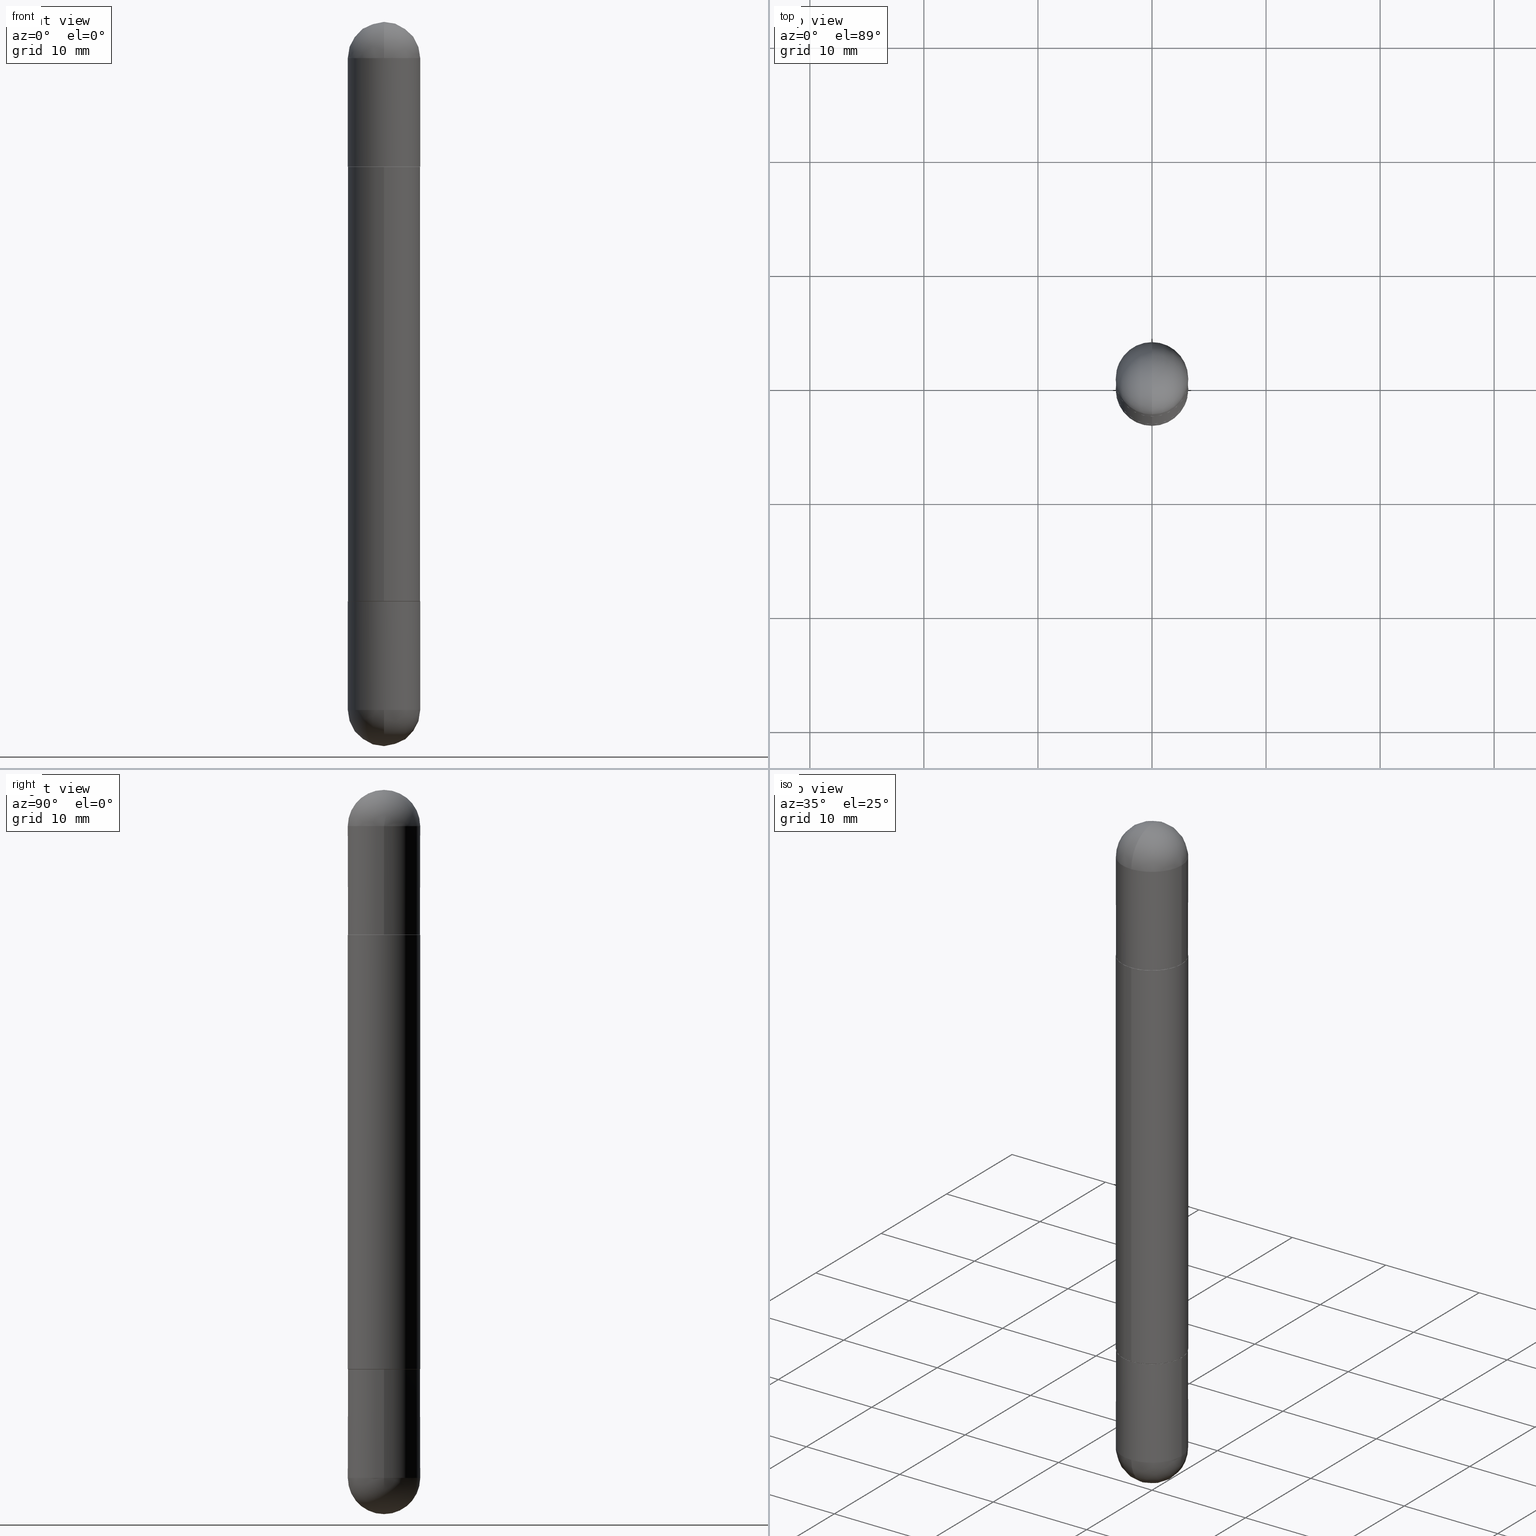
[diagram: canonical four-view strip — front | top / right | iso, engineering-drawing reading convention]
A machine part, canonical four-view strip (front | top / right | iso — engineering-drawing reading convention). The complete STEP part file that produces these views, byte-faithful:
ISO-10303-21;
HEADER;
FILE_DESCRIPTION (( 'STEP AP203' ),
    '1' );
FILE_NAME ('31351.STEP',
    '2024-03-01T12:41:28',
    ( '' ),
    ( '' ),
    'SwSTEP 2.0',
    'SolidWorks 2023',
    '' );
FILE_SCHEMA (( 'CONFIG_CONTROL_DESIGN' ));
ENDSEC;

DATA;
#1 = CONICAL_SURFACE ( 'NONE', #96, 0.1239999999999999991, 0.7853981633975507526 ) ;
#2 = EDGE_LOOP ( 'NONE', ( #809, #770, #580, #193, #389 ) ) ;
#3 =( NAMED_UNIT ( * ) SI_UNIT ( $, .STERADIAN. ) SOLID_ANGLE_UNIT ( ) );
#4 = CIRCLE ( 'NONE', #483, 0.1250000000000001943 ) ;
#5 = VERTEX_POINT ( 'NONE', #460 ) ;
#6 = APPLICATION_PROTOCOL_DEFINITION ( 'international standard', 'config_control_design', 1994, #145 ) ;
#7 = EDGE_CURVE ( 'NONE', #13, #372, #63, .T. ) ;
#8 = VERTEX_POINT ( 'NONE', #536 ) ;
#9 = CIRCLE ( 'NONE', #249, 0.1250000000000000000 ) ;
#10 = DIRECTION ( 'NONE',  ( 4.851104656541460468E-15, 0.7071067811866224018, -0.7071067811864726327 ) ) ;
#11 = AXIS2_PLACEMENT_3D ( 'NONE', #44, #104, #485 ) ;
#12 = LINE ( 'NONE', #264, #431 ) ;
#13 = VERTEX_POINT ( 'NONE', #780 ) ;
#14 = LINE ( 'NONE', #269, #565 ) ;
#15 = VECTOR ( 'NONE', #366, 39.37007874015748143 ) ;
#16 = CARTESIAN_POINT ( 'NONE',  ( 0.1250000000000000000, -8.728703347107833388E-16, -2.500000000000000444 ) ) ;
#17 = EDGE_LOOP ( 'NONE', ( #119, #187 ) ) ;
#18 = EDGE_CURVE ( 'NONE', #245, #531, #41, .T. ) ;
#19 = CARTESIAN_POINT ( 'NONE',  ( 4.888230624226823616E-29, -6.979845706923164784E-15, -0.5010000000000010001 ) ) ;
#20 = FACE_OUTER_BOUND ( 'NONE', #658, .T. ) ;
#21 = VERTEX_POINT ( 'NONE', #617 ) ;
#22 = CARTESIAN_POINT ( 'NONE',  ( 5.476868636775814291E-29, -8.766450547892521992E-15, -0.1250000000000004441 ) ) ;
#23 = CARTESIAN_POINT ( 'NONE',  ( -8.658873720330480207E-16, -0.1240000000000069796, -1.999999999999999112 ) ) ;
#24 = DIRECTION ( 'NONE',  ( 1.000000000000000000, -6.982962677686270655E-15, 0.000000000000000000 ) ) ;
#25 = DIRECTION ( 'NONE',  ( -2.445468806185136597E-29, 3.491481338843145583E-15, 1.000000000000000000 ) ) ;
#26 = CIRCLE ( 'NONE', #161, 0.1239999999999999991 ) ;
#27 = DIRECTION ( 'NONE',  ( -2.445337981103964041E-29, 3.491668687805485632E-15, -1.000000000000000000 ) ) ;
#28 = AXIS2_PLACEMENT_3D ( 'NONE', #109, #491, #732 ) ;
#29 = CIRCLE ( 'NONE', #500, 0.1250000000000001388 ) ;
#30 = CARTESIAN_POINT ( 'NONE',  ( 4.888230624226823616E-29, -6.979845706923164784E-15, -1.998999999999999666 ) ) ;
#31 = CARTESIAN_POINT ( 'NONE',  ( -0.1250000000000000000, -6.780053178997939591E-15, -0.5000000000000006661 ) ) ;
#32 = CARTESIAN_POINT ( 'NONE',  ( 5.787897026856327965E-29, -9.195231672753244292E-15, -2.561107494060246644E-16 ) ) ;
#33 = DIRECTION ( 'NONE',  ( 1.000000000000000000, -6.982962677686265922E-15, -4.883557194083112901E-29 ) ) ;
#34 = ADVANCED_FACE ( 'NONE', ( #295 ), #103, .F. ) ;
#35 = EDGE_CURVE ( 'NONE', #113, #572, #329, .T. ) ;
#36 = CARTESIAN_POINT ( 'NONE',  ( 0.000000000000000000, 0.000000000000000000, -2.500000000000000444 ) ) ;
#37 = ADVANCED_FACE ( 'NONE', ( #407 ), #547, .T. ) ;
#38 = CARTESIAN_POINT ( 'NONE',  ( 5.807988414689700538E-29, -8.292268179752471696E-15, -0.1250000000000004441 ) ) ;
#39 = CARTESIAN_POINT ( 'NONE',  ( 0.000000000000000000, 0.000000000000000000, -2.500000000000000444 ) ) ;
#40 = APPROVAL ( #443, 'UNSPECIFIED' ) ;
#41 = CIRCLE ( 'NONE', #392, 0.1250000000000000000 ) ;
#42 = DIRECTION ( 'NONE',  ( 6.982962677686265922E-15, 1.000000000000000000, 3.551402391763536859E-15 ) ) ;
#43 = CARTESIAN_POINT ( 'NONE',  ( 4.888230624226823616E-29, -6.979845706923164784E-15, -0.5010000000000010001 ) ) ;
#44 = CARTESIAN_POINT ( 'NONE',  ( 5.476868636775814291E-29, -8.766450547892521992E-15, -2.375000000000000000 ) ) ;
#45 = DIRECTION ( 'NONE',  ( -1.000000000000000000, 6.982962677686265922E-15, 4.883557194083112340E-29 ) ) ;
#46 = FACE_OUTER_BOUND ( 'NONE', #67, .T. ) ;
#47 = AXIS2_PLACEMENT_3D ( 'NONE', #739, #550, #429 ) ;
#48 = DIRECTION ( 'NONE',  ( 1.000000000000000000, -6.860497997771530774E-15, -4.840798879624142912E-29 ) ) ;
#49 = CC_DESIGN_PERSON_AND_ORGANIZATION_ASSIGNMENT ( #752, #817, ( #759 ) ) ;
#50 = CARTESIAN_POINT ( 'NONE',  ( -0.1250000000000000000, -6.749437009019256592E-15, -2.375000000000000000 ) ) ;
#51 = LINE ( 'NONE', #803, #101 ) ;
#52 = ORIENTED_EDGE ( 'NONE', *, *, #637, .T. ) ;
#53 = DIRECTION ( 'NONE',  ( -2.445337981103964041E-29, 3.491668687805485632E-15, 1.000000000000000000 ) ) ;
#54 = LINE ( 'NONE', #558, #136 ) ;
#55 = ORIENTED_EDGE ( 'NONE', *, *, #447, .T. ) ;
#56 = APPROVAL_DATE_TIME ( #629, #515 ) ;
#57 = EDGE_CURVE ( 'NONE', #21, #751, #573, .T. ) ;
#58 = VERTEX_POINT ( 'NONE', #92 ) ;
#59 = AXIS2_PLACEMENT_3D ( 'NONE', #94, #348, #610 ) ;
#60 = PERSON_AND_ORGANIZATION_ROLE ( 'design_supplier' ) ;
#61 = ORIENTED_EDGE ( 'NONE', *, *, #584, .T. ) ;
#62 = PERSON_AND_ORGANIZATION_ROLE ( 'classification_officer' ) ;
#63 = CIRCLE ( 'NONE', #357, 0.1250000000000000000 ) ;
#64 = ORIENTED_EDGE ( 'NONE', *, *, #528, .T. ) ;
#65 = APPROVAL_ROLE ( '' ) ;
#66 = CIRCLE ( 'NONE', #428, 0.1250000000000000000 ) ;
#67 = EDGE_LOOP ( 'NONE', ( #757, #442, #121, #64 ) ) ;
#68 = PERSON_AND_ORGANIZATION ( #621, #765 ) ;
#69 = EDGE_CURVE ( 'NONE', #271, #563, #530, .T. ) ;
#70 = CIRCLE ( 'NONE', #666, 0.1250000000000001943 ) ;
#71 = EDGE_CURVE ( 'NONE', #591, #645, #437, .T. ) ;
#72 = ORIENTED_EDGE ( 'NONE', *, *, #753, .T. ) ;
#73 = AXIS2_PLACEMENT_3D ( 'NONE', #681, #620, #237 ) ;
#74 = DIRECTION ( 'NONE',  ( -6.982962677686265922E-15, -1.000000000000000000, -4.370956789862816416E-15 ) ) ;
#75 = ORIENTED_EDGE ( 'NONE', *, *, #495, .F. ) ;
#76 = AXIS2_PLACEMENT_3D ( 'NONE', #289, #418, #172 ) ;
#77 = DIRECTION ( 'NONE',  ( -6.982962677686265922E-15, -1.000000000000000000, -3.304654831045479808E-15 ) ) ;
#78 = CIRCLE ( 'NONE', #493, 0.1250000000000000000 ) ;
#79 = CARTESIAN_POINT ( 'NONE',  ( 8.728703347108321496E-16, 0.1249999999999930195, -0.5000000000000001110 ) ) ;
#80 = ADVANCED_FACE ( 'NONE', ( #158 ), #410, .T. ) ;
#81 = ORIENTED_EDGE ( 'NONE', *, *, #715, .F. ) ;
#82 = CARTESIAN_POINT ( 'NONE',  ( 3.056672476379955962E-29, -4.364585859756858224E-15, -1.250000000000000222 ) ) ;
#83 = DIRECTION ( 'NONE',  ( -2.445468806185136877E-29, 3.491481338843145188E-15, -1.000000000000000000 ) ) ;
#84 = ORIENTED_EDGE ( 'NONE', *, *, #338, .T. ) ;
#85 = EDGE_CURVE ( 'NONE', #372, #13, #291, .T. ) ;
#86 = DIRECTION ( 'NONE',  ( -2.445337981103964041E-29, 3.491668687805485632E-15, -1.000000000000000000 ) ) ;
#87 = LINE ( 'NONE', #16, #682 ) ;
#88 = APPLICATION_CONTEXT ( 'configuration controlled 3d designs of mechanical parts and assemblies' ) ;
#89 = CARTESIAN_POINT ( 'NONE',  ( 4.890937612370273194E-29, -6.982962677686291165E-15, -2.000000000000000000 ) ) ;
#90 = CARTESIAN_POINT ( 'NONE',  ( 4.890675962207927522E-29, -6.983337375610970476E-15, -0.5000000000000009992 ) ) ;
#91 = FACE_OUTER_BOUND ( 'NONE', #747, .T. ) ;
#92 = CARTESIAN_POINT ( 'NONE',  ( -8.575622497213856334E-16, -0.1250000000000086320, -0.1250000000000008882 ) ) ;
#93 = EDGE_CURVE ( 'NONE', #182, #374, #205, .T. ) ;
#94 = CARTESIAN_POINT ( 'NONE',  ( 5.476868636775814291E-29, -8.766450547892521992E-15, -2.375000000000000000 ) ) ;
#95 = ADVANCED_FACE ( 'NONE', ( #427 ), #303, .F. ) ;
#96 = AXIS2_PLACEMENT_3D ( 'NONE', #222, #795, #672 ) ;
#97 = DIRECTION ( 'NONE',  ( -6.982962677686265922E-15, -1.000000000000000000, -4.370956789862816416E-15 ) ) ;
#98 = DIRECTION ( 'NONE',  ( 1.000000000000000000, -6.982962677686265922E-15, -4.883557194083112901E-29 ) ) ;
#99 = DIRECTION ( 'NONE',  ( -2.445468806185136597E-29, 3.491481338843145583E-15, -1.000000000000000000 ) ) ;
#100 = DIRECTION ( 'NONE',  ( -6.982962677686265922E-15, -1.000000000000000000, -3.304654831045479808E-15 ) ) ;
#101 = VECTOR ( 'NONE', #231, 39.37007874015748143 ) ;
#102 = CIRCLE ( 'NONE', #657, 0.1250000000000000000 ) ;
#103 = PLANE ( 'NONE',  #509 ) ;
#104 = DIRECTION ( 'NONE',  ( 1.000000000000000000, -6.982962677686265922E-15, 4.883557194083112340E-29 ) ) ;
#105 = AXIS2_PLACEMENT_3D ( 'NONE', #474, #726, #789 ) ;
#106 = PLANE ( 'NONE',  #150 ) ;
#107 = EDGE_CURVE ( 'NONE', #8, #58, #615, .T. ) ;
#108 = DIRECTION ( 'NONE',  ( 1.000000000000000000, -6.982962677686270655E-15, 0.000000000000000000 ) ) ;
#109 = CARTESIAN_POINT ( 'NONE',  ( 0.000000000000000000, 0.000000000000000000, -2.500000000000000444 ) ) ;
#110 = FACE_OUTER_BOUND ( 'NONE', #575, .T. ) ;
#111 = VECTOR ( 'NONE', #152, 39.37007874015748143 ) ;
#112 = AXIS2_PLACEMENT_3D ( 'NONE', #421, #562, #173 ) ;
#113 = VERTEX_POINT ( 'NONE', #178 ) ;
#114 = DIRECTION ( 'NONE',  ( 2.445337981103964041E-29, -3.491668687805485632E-15, 1.000000000000000000 ) ) ;
#115 = CYLINDRICAL_SURFACE ( 'NONE', #376, 0.1250000000000000000 ) ;
#116 = CONICAL_SURFACE ( 'NONE', #570, 0.1239999999999999991, 0.7853981633975507526 ) ;
#117 = DIRECTION ( 'NONE',  ( 1.000000000000000000, -6.982962677686270655E-15, 0.000000000000000000 ) ) ;
#118 = APPROVAL_DATE_TIME ( #381, #40 ) ;
#119 = ORIENTED_EDGE ( 'NONE', *, *, #438, .T. ) ;
#120 = PERSON_AND_ORGANIZATION ( #621, #765 ) ;
#121 = ORIENTED_EDGE ( 'NONE', *, *, #131, .T. ) ;
#122 = MANIFOLD_SOLID_BREP ( 'Mirror4[4]', #772 ) ;
#123 = ORIENTED_EDGE ( 'NONE', *, *, #365, .T. ) ;
#124 = ORIENTED_EDGE ( 'NONE', *, *, #741, .F. ) ;
#125 = VECTOR ( 'NONE', #169, 39.37007874015748143 ) ;
#126 = PERSON_AND_ORGANIZATION ( #621, #765 ) ;
#127 = ORIENTED_EDGE ( 'NONE', *, *, #616, .T. ) ;
#128 = ORIENTED_EDGE ( 'NONE', *, *, #761, .F. ) ;
#129 = COORDINATED_UNIVERSAL_TIME_OFFSET ( 5, 0, .BEHIND. ) ;
#130 = MANIFOLD_SOLID_BREP ( 'Combine1', #689 ) ;
#131 = EDGE_CURVE ( 'NONE', #58, #194, #724, .T. ) ;
#132 = ORIENTED_EDGE ( 'NONE', *, *, #464, .T. ) ;
#133 = APPROVAL_DATE_TIME ( #503, #553 ) ;
#134 = CIRCLE ( 'NONE', #175, 0.1239999999999999991 ) ;
#135 = ORIENTED_EDGE ( 'NONE', *, *, #616, .F. ) ;
#136 = VECTOR ( 'NONE', #235, 39.37007874015748143 ) ;
#137 = EDGE_LOOP ( 'NONE', ( #378, #84, #432, #238, #420 ) ) ;
#138 = DIRECTION ( 'NONE',  ( -2.445337981103964041E-29, 3.491668687805485632E-15, -1.000000000000000000 ) ) ;
#139 = EDGE_CURVE ( 'NONE', #5, #628, #9, .T. ) ;
#140 = DIRECTION ( 'NONE',  ( -4.937700262165053702E-15, -0.7071067811866175168, 0.7071067811864775177 ) ) ;
#141 = ORIENTED_EDGE ( 'NONE', *, *, #603, .T. ) ;
#142 = AXIS2_PLACEMENT_3D ( 'NONE', #622, #53, #800 ) ;
#143 = CARTESIAN_POINT ( 'NONE',  ( 5.807988414689700538E-29, -8.292268179752471696E-15, -2.375000000000000000 ) ) ;
#144 = CARTESIAN_POINT ( 'NONE',  ( 5.476868636775814291E-29, -8.766450547892521992E-15, -2.375000000000000000 ) ) ;
#145 = APPLICATION_CONTEXT ( 'configuration controlled 3d designs of mechanical parts and assemblies' ) ;
#146 = ORIENTED_EDGE ( 'NONE', *, *, #630, .T. ) ;
#147 = CARTESIAN_POINT ( 'NONE',  ( 5.807988414689700538E-29, -8.292268179752471696E-15, -0.1250000000000004441 ) ) ;
#148 = CARTESIAN_POINT ( 'NONE',  ( 0.000000000000000000, 0.000000000000000000, -2.500000000000000444 ) ) ;
#149 = EDGE_LOOP ( 'NONE', ( #683, #518, #341, #72, #190 ) ) ;
#150 = AXIS2_PLACEMENT_3D ( 'NONE', #359, #293, #362 ) ;
#151 = DIRECTION ( 'NONE',  ( 2.445468806185136597E-29, -3.491481338843145583E-15, 1.000000000000000000 ) ) ;
#152 = DIRECTION ( 'NONE',  ( 5.024295867788576727E-15, 0.7071067811866224018, 0.7071067811864726327 ) ) ;
#153 = EDGE_CURVE ( 'NONE', #374, #182, #587, .T. ) ;
#154 = DIRECTION ( 'NONE',  ( -6.982962677686265922E-15, -1.000000000000000000, -3.278217592397108762E-15 ) ) ;
#155 = EDGE_CURVE ( 'NONE', #572, #563, #561, .T. ) ;
#156 = DIRECTION ( 'NONE',  ( -2.445468806185136597E-29, 3.491481338843145583E-15, -1.000000000000000000 ) ) ;
#157 = DIRECTION ( 'NONE',  ( -1.000000000000000000, 6.982962677686265922E-15, 4.883557194083112340E-29 ) ) ;
#158 = FACE_OUTER_BOUND ( 'NONE', #313, .T. ) ;
#159 = DIRECTION ( 'NONE',  ( 2.445468806185136597E-29, -3.491481338843145583E-15, 1.000000000000000000 ) ) ;
#160 = DIRECTION ( 'NONE',  ( -6.982962677686265922E-15, -1.000000000000000000, -3.304654831045479808E-15 ) ) ;
#161 = AXIS2_PLACEMENT_3D ( 'NONE', #766, #778, #207 ) ;
#162 = DIRECTION ( 'NONE',  ( -1.000000000000000000, 0.000000000000000000, 0.000000000000000000 ) ) ;
#163 = DIRECTION ( 'NONE',  ( 2.445468806185136597E-29, -3.491481338843145583E-15, 1.000000000000000000 ) ) ;
#164 = CARTESIAN_POINT ( 'NONE',  ( 8.728703347108321496E-16, 0.1249999999999930195, -0.5000000000000001110 ) ) ;
#165 = DIRECTION ( 'NONE',  ( -6.982962677686265133E-15, -1.000000000000000000, 0.000000000000000000 ) ) ;
#166 = CARTESIAN_POINT ( 'NONE',  ( 8.541320007226054361E-16, 0.1239999999999930186, -0.5000000000000005551 ) ) ;
#167 = PRODUCT_DEFINITION ( 'UNKNOWN', '', #322, #481 ) ;
#168 = CARTESIAN_POINT ( 'NONE',  ( 5.807988414689700538E-29, -8.292268179752471696E-15, -0.1250000000000004441 ) ) ;
#169 = DIRECTION ( 'NONE',  ( -2.445468806185136877E-29, 3.491481338843145188E-15, -1.000000000000000000 ) ) ;
#170 = CARTESIAN_POINT ( 'NONE',  ( 8.541320007226054361E-16, 0.1239999999999930186, -0.5000000000000005551 ) ) ;
#171 = CIRCLE ( 'NONE', #590, 0.1250000000000000000 ) ;
#172 = DIRECTION ( 'NONE',  ( 1.000000000000000000, -6.982962677686270655E-15, 0.000000000000000000 ) ) ;
#173 = DIRECTION ( 'NONE',  ( -6.982962677686265922E-15, -1.000000000000000000, -3.491668687805485632E-15 ) ) ;
#174 = ORIENTED_EDGE ( 'NONE', *, *, #57, .F. ) ;
#175 = AXIS2_PLACEMENT_3D ( 'NONE', #273, #340, #720 ) ;
#176 = AXIS2_PLACEMENT_3D ( 'NONE', #680, #358, #160 ) ;
#177 = AXIS2_PLACEMENT_3D ( 'NONE', #461, #263, #77 ) ;
#178 = CARTESIAN_POINT ( 'NONE',  ( -8.728703347107364016E-16, -0.1250000000000072720, -0.5010000000000014442 ) ) ;
#179 = DIRECTION ( 'NONE',  ( 2.445468806185136597E-29, -3.491481338843145583E-15, 1.000000000000000000 ) ) ;
#180 = ORIENTED_EDGE ( 'NONE', *, *, #213, .T. ) ;
#181 = EDGE_CURVE ( 'NONE', #814, #700, #185, .T. ) ;
#182 = VERTEX_POINT ( 'NONE', #738 ) ;
#183 =( CONVERSION_BASED_UNIT ( 'INCH', #811 ) LENGTH_UNIT ( ) NAMED_UNIT ( #785 ) );
#184 = EDGE_CURVE ( 'NONE', #233, #754, #371, .T. ) ;
#185 = CIRCLE ( 'NONE', #790, 0.1250000000000001943 ) ;
#186 = CLOSED_SHELL ( 'NONE', ( #457, #267, #288, #673, #728, #631 ) ) ;
#187 = ORIENTED_EDGE ( 'NONE', *, *, #741, .T. ) ;
#188 = ORIENTED_EDGE ( 'NONE', *, *, #446, .F. ) ;
#189 = DATE_TIME_ROLE ( 'creation_date' ) ;
#190 = ORIENTED_EDGE ( 'NONE', *, *, #232, .T. ) ;
#191 = PERSON_AND_ORGANIZATION ( #621, #765 ) ;
#192 = EDGE_CURVE ( 'NONE', #559, #700, #78, .T. ) ;
#193 = ORIENTED_EDGE ( 'NONE', *, *, #417, .F. ) ;
#194 = VERTEX_POINT ( 'NONE', #552 ) ;
#195 = CIRCLE ( 'NONE', #411, 0.1250000000000000000 ) ;
#196 = ORIENTED_EDGE ( 'NONE', *, *, #435, .F. ) ;
#197 = AXIS2_PLACEMENT_3D ( 'NONE', #655, #86, #339 ) ;
#198 = CYLINDRICAL_SURFACE ( 'NONE', #244, 0.1250000000000000000 ) ;
#199 = LINE ( 'NONE', #776, #279 ) ;
#200 = ORIENTED_EDGE ( 'NONE', *, *, #413, .T. ) ;
#201 = DIRECTION ( 'NONE',  ( -0.000000000000000000, -0.000000000000000000, -1.000000000000000000 ) ) ;
#202 = ADVANCED_FACE ( 'NONE', ( #360 ), #223, .T. ) ;
#203 = DIRECTION ( 'NONE',  ( -6.982962677686265133E-15, -1.000000000000000000, 0.000000000000000000 ) ) ;
#204 = VERTEX_POINT ( 'NONE', #731 ) ;
#205 = CIRCLE ( 'NONE', #142, 0.1239999999999999991 ) ;
#206 = DIRECTION ( 'NONE',  ( -1.000000000000000000, 0.000000000000000000, 0.000000000000000000 ) ) ;
#207 = DIRECTION ( 'NONE',  ( -6.982962677686265922E-15, -1.000000000000000000, -3.304654831045479808E-15 ) ) ;
#208 = EDGE_LOOP ( 'NONE', ( #402, #818, #568, #439 ) ) ;
#209 = VECTOR ( 'NONE', #27, 39.37007874015748143 ) ;
#210 = DIRECTION ( 'NONE',  ( 1.000000000000000000, -6.982962677686270655E-15, 0.000000000000000000 ) ) ;
#211 = CIRCLE ( 'NONE', #281, 0.1250000000000001388 ) ;
#212 = CARTESIAN_POINT ( 'NONE',  ( 8.575622497214423328E-16, 0.1250000000000001388, -2.500000000000000000 ) ) ;
#213 = EDGE_CURVE ( 'NONE', #572, #113, #294, .T. ) ;
#214 = CARTESIAN_POINT ( 'NONE',  ( 4.890937612370273194E-29, -6.982962677686291165E-15, -0.5000000000000006661 ) ) ;
#215 = CARTESIAN_POINT ( 'NONE',  ( -0.1250000000000000000, -6.780053178997941168E-15, -0.1250000000000004441 ) ) ;
#216 = FACE_OUTER_BOUND ( 'NONE', #254, .T. ) ;
#217 = APPROVAL_PERSON_ORGANIZATION ( #191, #40, #696 ) ;
#218 = CARTESIAN_POINT ( 'NONE',  ( 4.890675962207928082E-29, -6.983337375610971265E-15, -2.000000000000000000 ) ) ;
#219 = FACE_OUTER_BOUND ( 'NONE', #252, .T. ) ;
#220 = AXIS2_PLACEMENT_3D ( 'NONE', #423, #618, #675 ) ;
#221 = CARTESIAN_POINT ( 'NONE',  ( 0.1250000000000000000, -8.510485763430165164E-15, -2.375000000000000000 ) ) ;
#222 = CARTESIAN_POINT ( 'NONE',  ( 4.890675962207927522E-29, -6.983337375610970476E-15, -0.5000000000000009992 ) ) ;
#223 = CONICAL_SURFACE ( 'NONE', #549, 0.1239999999999999991, 0.7853981633975507526 ) ;
#224 = DIRECTION ( 'NONE',  ( -6.982962677686265922E-15, -1.000000000000000000, 4.370956789862811683E-15 ) ) ;
#225 = CARTESIAN_POINT ( 'NONE',  ( 4.888230624226823616E-29, -6.979845706923164784E-15, -0.5010000000000010001 ) ) ;
#226 = EDGE_CURVE ( 'NONE', #645, #559, #171, .T. ) ;
#227 = CARTESIAN_POINT ( 'NONE',  ( 0.000000000000000000, 0.000000000000000000, -2.500000000000000444 ) ) ;
#228 = CARTESIAN_POINT ( 'NONE',  ( -0.1250000000000000000, 8.575622497214414453E-16, -2.500000000000000444 ) ) ;
#229 = CARTESIAN_POINT ( 'NONE',  ( 4.890675962207927522E-29, -6.983337375610970476E-15, -1.999999999999999778 ) ) ;
#230 = DIRECTION ( 'NONE',  ( 6.860497997771529196E-15, 1.000000000000000000, 0.000000000000000000 ) ) ;
#231 = DIRECTION ( 'NONE',  ( -2.445468806185136877E-29, 3.491481338843145188E-15, 1.000000000000000000 ) ) ;
#232 = EDGE_CURVE ( 'NONE', #531, #245, #102, .T. ) ;
#233 = VERTEX_POINT ( 'NONE', #743 ) ;
#234 = DIRECTION ( 'NONE',  ( 2.445468806185136597E-29, -3.491481338843145583E-15, 1.000000000000000000 ) ) ;
#235 = DIRECTION ( 'NONE',  ( 4.851104656541460468E-15, 0.7071067811866224018, -0.7071067811864726327 ) ) ;
#236 = EDGE_LOOP ( 'NONE', ( #748, #247 ) ) ;
#237 = DIRECTION ( 'NONE',  ( -6.982962677686265922E-15, -1.000000000000000000, 4.370956789862811683E-15 ) ) ;
#238 = ORIENTED_EDGE ( 'NONE', *, *, #753, .F. ) ;
#239 = CARTESIAN_POINT ( 'NONE',  ( 5.807988414689700538E-29, -8.292268179752471696E-15, -0.1250000000000004441 ) ) ;
#240 = DIRECTION ( 'NONE',  ( 1.000000000000000000, -6.982962677686266711E-15, 0.000000000000000000 ) ) ;
#241 = VERTEX_POINT ( 'NONE', #688 ) ;
#242 = VECTOR ( 'NONE', #656, 39.37007874015748143 ) ;
#243 = CIRCLE ( 'NONE', #595, 0.1250000000000000000 ) ;
#244 = AXIS2_PLACEMENT_3D ( 'NONE', #342, #156, #604 ) ;
#245 = VERTEX_POINT ( 'NONE', #31 ) ;
#246 = DIRECTION ( 'NONE',  ( 0.000000000000000000, 0.000000000000000000, 1.000000000000000000 ) ) ;
#247 = ORIENTED_EDGE ( 'NONE', *, *, #18, .F. ) ;
#248 = MECHANICAL_CONTEXT ( 'NONE', #88, 'mechanical' ) ;
#249 = AXIS2_PLACEMENT_3D ( 'NONE', #479, #159, #108 ) ;
#250 = ORIENTED_EDGE ( 'NONE', *, *, #7, .T. ) ;
#251 = CALENDAR_DATE ( 2024, 1, 3 ) ;
#252 = EDGE_LOOP ( 'NONE', ( #767, #325, #310, #638, #312 ) ) ;
#253 = CC_DESIGN_DATE_AND_TIME_ASSIGNMENT ( #755, #517, ( #537 ) ) ;
#254 = EDGE_LOOP ( 'NONE', ( #504, #305, #708, #75, #146 ) ) ;
#255 = COORDINATED_UNIVERSAL_TIME_OFFSET ( 5, 0, .BEHIND. ) ;
#256 = ADVANCED_FACE ( 'NONE', ( #543 ), #475, .T. ) ;
#257 = AXIS2_PLACEMENT_3D ( 'NONE', #494, #614, #162 ) ;
#258 = EDGE_LOOP ( 'NONE', ( #448, #394, #598, #513 ) ) ;
#259 = APPROVAL_STATUS ( 'not_yet_approved' ) ;
#260 = AXIS2_PLACEMENT_3D ( 'NONE', #783, #163, #354 ) ;
#261 = ORIENTED_EDGE ( 'NONE', *, *, #523, .T. ) ;
#262 = PRODUCT_DEFINITION_SHAPE ( 'NONE', 'NONE',  #167 ) ;
#263 = DIRECTION ( 'NONE',  ( -2.445337981103964041E-29, 3.491668687805485632E-15, -1.000000000000000000 ) ) ;
#264 = CARTESIAN_POINT ( 'NONE',  ( 0.1250000000000000000, -8.728703347107833388E-16, 6.095220969744919741E-30 ) ) ;
#265 = ADVANCED_FACE ( 'NONE', ( #219 ), #791, .T. ) ;
#266 = ORIENTED_EDGE ( 'NONE', *, *, #417, .T. ) ;
#267 = ADVANCED_FACE ( 'NONE', ( #484 ), #116, .T. ) ;
#268 =( GEOMETRIC_REPRESENTATION_CONTEXT ( 3 ) GLOBAL_UNCERTAINTY_ASSIGNED_CONTEXT ( ( #793 ) ) GLOBAL_UNIT_ASSIGNED_CONTEXT ( ( #183, #320, #3 ) ) REPRESENTATION_CONTEXT ( 'NONE', 'WORKASPACE' ) );
#269 = CARTESIAN_POINT ( 'NONE',  ( -8.728703347107842263E-16, -0.1250000000000001388, -2.500000000000001332 ) ) ;
#270 = LINE ( 'NONE', #333, #209 ) ;
#271 = VERTEX_POINT ( 'NONE', #422 ) ;
#272 = DIRECTION ( 'NONE',  ( -0.000000000000000000, -0.000000000000000000, -1.000000000000000000 ) ) ;
#273 = CARTESIAN_POINT ( 'NONE',  ( 4.890675962207927522E-29, -6.983337375610970476E-15, -0.5000000000000009992 ) ) ;
#274 = EDGE_LOOP ( 'NONE', ( #480, #334, #571, #386 ) ) ;
#275 = CARTESIAN_POINT ( 'NONE',  ( 8.575622497214919324E-16, 0.1249999999999932693, -0.5010000000000006670 ) ) ;
#276 = CC_DESIGN_PERSON_AND_ORGANIZATION_ASSIGNMENT ( #126, #62, ( #537 ) ) ;
#277 = CARTESIAN_POINT ( 'NONE',  ( -0.1250000000000000000, 8.575622497214414453E-16, -2.500000000000000444 ) ) ;
#278 = VERTEX_POINT ( 'NONE', #166 ) ;
#279 = VECTOR ( 'NONE', #10, 39.37007874015748143 ) ;
#280 = CARTESIAN_POINT ( 'NONE',  ( 0.000000000000000000, 0.000000000000000000, -2.500000000000000444 ) ) ;
#281 = AXIS2_PLACEMENT_3D ( 'NONE', #82, #201, #206 ) ;
#282 = AXIS2_PLACEMENT_3D ( 'NONE', #19, #705, #764 ) ;
#283 = CYLINDRICAL_SURFACE ( 'NONE', #384, 0.1250000000000000000 ) ;
#284 = DIRECTION ( 'NONE',  ( 2.445337981103964041E-29, -3.491668687805485632E-15, 1.000000000000000000 ) ) ;
#285 = DIRECTION ( 'NONE',  ( -6.982962677686265922E-15, -1.000000000000000000, 4.406206441393973340E-15 ) ) ;
#286 = CARTESIAN_POINT ( 'NONE',  ( 8.575622497214909463E-16, 0.1249999999999957673, -1.250000000000000222 ) ) ;
#287 = FACE_OUTER_BOUND ( 'NONE', #451, .T. ) ;
#288 = ADVANCED_FACE ( 'NONE', ( #611 ), #560, .F. ) ;
#289 = CARTESIAN_POINT ( 'NONE',  ( 4.890937612370273194E-29, -6.982962677686291165E-15, -2.000000000000000000 ) ) ;
#290 = DIRECTION ( 'NONE',  ( 1.000000000000000000, -6.982962677686270655E-15, 0.000000000000000000 ) ) ;
#291 = CIRCLE ( 'NONE', #76, 0.1250000000000000000 ) ;
#292 =( LENGTH_UNIT ( ) NAMED_UNIT ( * ) SI_UNIT ( $, .METRE. ) );
#293 = DIRECTION ( 'NONE',  ( -2.445337981103963761E-29, 3.491668687805485632E-15, -1.000000000000000000 ) ) ;
#294 = CIRCLE ( 'NONE', #532, 0.1250000000000002776 ) ;
#295 = FACE_OUTER_BOUND ( 'NONE', #775, .T. ) ;
#296 = DIRECTION ( 'NONE',  ( -2.445468806185136597E-29, 3.491481338843145583E-15, 1.000000000000000000 ) ) ;
#297 = PLANE ( 'NONE',  #112 ) ;
#298 = CARTESIAN_POINT ( 'NONE',  ( 5.476868636775814291E-29, -8.766450547892521992E-15, -0.1250000000000004441 ) ) ;
#299 = VERTEX_POINT ( 'NONE', #170 ) ;
#300 = CARTESIAN_POINT ( 'NONE',  ( 4.890937612370273194E-29, -6.982962677686291165E-15, -0.5000000000000006661 ) ) ;
#301 = LINE ( 'NONE', #627, #415 ) ;
#302 = SPHERICAL_SURFACE ( 'NONE', #454, 0.1250000000000001943 ) ;
#303 = PLANE ( 'NONE',  #749 ) ;
#304 = DIRECTION ( 'NONE',  ( 2.445337981103964041E-29, -3.491668687805485632E-15, 1.000000000000000000 ) ) ;
#305 = ORIENTED_EDGE ( 'NONE', *, *, #327, .T. ) ;
#306 = ADVANCED_FACE ( 'NONE', ( #736 ), #551, .T. ) ;
#307 = ADVANCED_FACE ( 'NONE', ( #733 ), #302, .T. ) ;
#308 = ORIENTED_EDGE ( 'NONE', *, *, #650, .F. ) ;
#309 = CALENDAR_DATE ( 2024, 1, 3 ) ;
#310 = ORIENTED_EDGE ( 'NONE', *, *, #761, .T. ) ;
#311 = CC_DESIGN_APPROVAL ( #553, ( #167 ) ) ;
#312 = ORIENTED_EDGE ( 'NONE', *, *, #7, .F. ) ;
#313 = EDGE_LOOP ( 'NONE', ( #502, #632, #132, #331 ) ) ;
#314 = ADVANCED_FACE ( 'NONE', ( #110 ), #106, .F. ) ;
#315 = ORIENTED_EDGE ( 'NONE', *, *, #706, .F. ) ;
#316 = ORIENTED_EDGE ( 'NONE', *, *, #641, .T. ) ;
#317 = COORDINATED_UNIVERSAL_TIME_OFFSET ( 5, 0, .BEHIND. ) ;
#318 = LOCAL_TIME ( 7, 41, 28.00000000000000000, #129 ) ;
#319 = ORIENTED_EDGE ( 'NONE', *, *, #413, .F. ) ;
#320 =( NAMED_UNIT ( * ) PLANE_ANGLE_UNIT ( ) SI_UNIT ( $, .RADIAN. ) );
#321 = CIRCLE ( 'NONE', #742, 0.1250000000000000000 ) ;
#322 = PRODUCT_DEFINITION_FORMATION_WITH_SPECIFIED_SOURCE ( 'ANY', '', #759, .NOT_KNOWN. ) ;
#323 = ORIENTED_EDGE ( 'NONE', *, *, #637, .F. ) ;
#324 = PERSON_AND_ORGANIZATION ( #621, #765 ) ;
#325 = ORIENTED_EDGE ( 'NONE', *, *, #578, .T. ) ;
#326 = CARTESIAN_POINT ( 'NONE',  ( 3.056672476379955962E-29, -4.364585859756858224E-15, -1.250000000000000222 ) ) ;
#327 = EDGE_CURVE ( 'NONE', #697, #13, #51, .T. ) ;
#328 = DIRECTION ( 'NONE',  ( -1.000000000000000000, 6.982962677686265922E-15, -4.876176775795935793E-29 ) ) ;
#329 = CIRCLE ( 'NONE', #546, 0.1250000000000002776 ) ;
#330 = EDGE_CURVE ( 'NONE', #563, #271, #582, .T. ) ;
#331 = ORIENTED_EDGE ( 'NONE', *, *, #69, .T. ) ;
#332 = DIRECTION ( 'NONE',  ( 1.000000000000000000, -6.982962677686270655E-15, 0.000000000000000000 ) ) ;
#333 = CARTESIAN_POINT ( 'NONE',  ( -8.728703347107842263E-16, -0.1250000000000001388, -2.500000000000001332 ) ) ;
#334 = ORIENTED_EDGE ( 'NONE', *, *, #446, .T. ) ;
#335 = DIRECTION ( 'NONE',  ( -2.445468806185136597E-29, 3.491481338843145583E-15, 1.000000000000000000 ) ) ;
#336 = DIRECTION ( 'NONE',  ( 2.438088387897960049E-29, -3.491481338843145188E-15, 1.000000000000000000 ) ) ;
#337 = ORIENTED_EDGE ( 'NONE', *, *, #641, .F. ) ;
#338 = EDGE_CURVE ( 'NONE', #8, #245, #416, .T. ) ;
#339 = DIRECTION ( 'NONE',  ( -6.982962677686265922E-15, -1.000000000000000000, -4.370956789862816416E-15 ) ) ;
#340 = DIRECTION ( 'NONE',  ( 2.445337981103964041E-29, -3.491668687805485632E-15, 1.000000000000000000 ) ) ;
#341 = ORIENTED_EDGE ( 'NONE', *, *, #528, .F. ) ;
#342 = CARTESIAN_POINT ( 'NONE',  ( 0.000000000000000000, 0.000000000000000000, -2.500000000000000444 ) ) ;
#343 = ADVANCED_FACE ( 'NONE', ( #46 ), #545, .T. ) ;
#344 = CARTESIAN_POINT ( 'NONE',  ( 8.810729923425729363E-16, 0.1239999999999930186, -2.000000000000000444 ) ) ;
#345 = CC_DESIGN_SECURITY_CLASSIFICATION ( #537, ( #322 ) ) ;
#346 = DIRECTION ( 'NONE',  ( 2.445468806185136597E-29, -3.491481338843145583E-15, 1.000000000000000000 ) ) ;
#347 = AXIS2_PLACEMENT_3D ( 'NONE', #774, #472, #714 ) ;
#348 = DIRECTION ( 'NONE',  ( -1.000000000000000000, 7.105427357601001070E-15, -4.926315508542082329E-29 ) ) ;
#349 = AXIS2_PLACEMENT_3D ( 'NONE', #280, #138, #723 ) ;
#350 = DIRECTION ( 'NONE',  ( 6.982962677686265922E-15, 1.000000000000000000, 3.551402391763536859E-15 ) ) ;
#351 = DIRECTION ( 'NONE',  ( 2.445337981103964041E-29, -3.491668687805485632E-15, 1.000000000000000000 ) ) ;
#352 = DIRECTION ( 'NONE',  ( 6.982962677686265922E-15, 1.000000000000000000, 3.551402391763536859E-15 ) ) ;
#353 = LINE ( 'NONE', #23, #535 ) ;
#354 = DIRECTION ( 'NONE',  ( 1.000000000000000000, -6.982962677686270655E-15, 0.000000000000000000 ) ) ;
#355 = ADVANCED_FACE ( 'NONE', ( #287 ), #1, .T. ) ;
#356 = DIRECTION ( 'NONE',  ( 1.000000000000000000, -6.982962677686270655E-15, 0.000000000000000000 ) ) ;
#357 = AXIS2_PLACEMENT_3D ( 'NONE', #89, #601, #24 ) ;
#358 = DIRECTION ( 'NONE',  ( -2.445337981103964041E-29, 3.491668687805485632E-15, -1.000000000000000000 ) ) ;
#359 = CARTESIAN_POINT ( 'NONE',  ( 4.890675962207928082E-29, -6.983337375610971265E-15, -0.5000000000000006661 ) ) ;
#360 = FACE_OUTER_BOUND ( 'NONE', #274, .T. ) ;
#361 = DIRECTION ( 'NONE',  ( -2.445468806185136597E-29, 3.491481338843145583E-15, -1.000000000000000000 ) ) ;
#362 = DIRECTION ( 'NONE',  ( -6.982962677686265922E-15, -1.000000000000000000, -3.491668687805485632E-15 ) ) ;
#363 = LOCAL_TIME ( 7, 41, 28.00000000000000000, #255 ) ;
#364 = DIRECTION ( 'NONE',  ( 1.000000000000000000, -6.982962677686270655E-15, 0.000000000000000000 ) ) ;
#365 = EDGE_CURVE ( 'NONE', #182, #271, #353, .T. ) ;
#366 = DIRECTION ( 'NONE',  ( -4.937700262165053702E-15, -0.7071067811866175168, -0.7071067811864775177 ) ) ;
#367 = ADVANCED_FACE ( 'NONE', ( #453 ), #463, .T. ) ;
#368 = DIRECTION ( 'NONE',  ( 2.445468806185136597E-29, -3.491481338843145583E-15, 1.000000000000000000 ) ) ;
#369 = DATE_AND_TIME ( #251, #363 ) ;
#370 = AXIS2_PLACEMENT_3D ( 'NONE', #38, #548, #433 ) ;
#371 = CIRCLE ( 'NONE', #11, 0.1250000000000001943 ) ;
#372 = VERTEX_POINT ( 'NONE', #540 ) ;
#373 = COORDINATED_UNIVERSAL_TIME_OFFSET ( 5, 0, .BEHIND. ) ;
#374 = VERTEX_POINT ( 'NONE', #769 ) ;
#375 = EDGE_CURVE ( 'NONE', #559, #628, #468, .T. ) ;
#376 = AXIS2_PLACEMENT_3D ( 'NONE', #39, #99, #240 ) ;
#377 = EDGE_LOOP ( 'NONE', ( #507, #651, #510, #266, #399 ) ) ;
#378 = ORIENTED_EDGE ( 'NONE', *, *, #107, .F. ) ;
#379 = APPROVAL_ROLE ( '' ) ;
#380 = ORIENTED_EDGE ( 'NONE', *, *, #435, .T. ) ;
#381 = DATE_AND_TIME ( #758, #318 ) ;
#382 = ORIENTED_EDGE ( 'NONE', *, *, #184, .T. ) ;
#383 = APPLICATION_PROTOCOL_DEFINITION ( 'international standard', 'config_control_design', 1994, #88 ) ;
#384 = AXIS2_PLACEMENT_3D ( 'NONE', #462, #653, #711 ) ;
#385 = LOCAL_TIME ( 7, 41, 28.00000000000000000, #636 ) ;
#386 = ORIENTED_EDGE ( 'NONE', *, *, #365, .F. ) ;
#387 = AXIS2_PLACEMENT_3D ( 'NONE', #90, #519, #593 ) ;
#388 = ADVANCED_FACE ( 'NONE', ( #216 ), #283, .T. ) ;
#389 = ORIENTED_EDGE ( 'NONE', *, *, #566, .F. ) ;
#390 = DIRECTION ( 'NONE',  ( 2.445468806185136597E-29, -3.491481338843145583E-15, 1.000000000000000000 ) ) ;
#391 = DIRECTION ( 'NONE',  ( 6.982962677686265922E-15, 1.000000000000000000, -4.370956789862814839E-15 ) ) ;
#392 = AXIS2_PLACEMENT_3D ( 'NONE', #214, #346, #663 ) ;
#393 = MANIFOLD_SOLID_BREP ( 'Body-Move/Copy2[1]', #815 ) ;
#394 = ORIENTED_EDGE ( 'NONE', *, *, #650, .T. ) ;
#395 = CARTESIAN_POINT ( 'NONE',  ( -8.728703347107444874E-16, -0.1250000000000044964, -1.250000000000000222 ) ) ;
#396 = MANIFOLD_SOLID_BREP ( 'Mirror4[3]', #424 ) ;
#397 = DIRECTION ( 'NONE',  ( -2.445337981103964041E-29, 3.491668687805485632E-15, -1.000000000000000000 ) ) ;
#398 = CC_DESIGN_DATE_AND_TIME_ASSIGNMENT ( #369, #189, ( #167 ) ) ;
#399 = ORIENTED_EDGE ( 'NONE', *, *, #139, .T. ) ;
#400 = CYLINDRICAL_SURFACE ( 'NONE', #197, 0.1250000000000001388 ) ;
#401 = DIRECTION ( 'NONE',  ( 2.438088387897960049E-29, -3.491481338843145188E-15, -1.000000000000000000 ) ) ;
#402 = ORIENTED_EDGE ( 'NONE', *, *, #213, .F. ) ;
#403 = AXIS2_PLACEMENT_3D ( 'NONE', #412, #98, #352 ) ;
#404 = ADVANCED_FACE ( 'NONE', ( #594 ), #707, .T. ) ;
#405 = CARTESIAN_POINT ( 'NONE',  ( 5.807988414689700538E-29, -8.292268179752471696E-15, -2.375000000000000000 ) ) ;
#406 = LINE ( 'NONE', #344, #111 ) ;
#407 = FACE_OUTER_BOUND ( 'NONE', #506, .T. ) ;
#408 = DIRECTION ( 'NONE',  ( 1.000000000000000000, -6.982962677686270655E-15, 0.000000000000000000 ) ) ;
#409 = CARTESIAN_POINT ( 'NONE',  ( 5.476868636775814291E-29, -8.766450547892521992E-15, -0.1250000000000004441 ) ) ;
#410 = CYLINDRICAL_SURFACE ( 'NONE', #459, 0.1250000000000001388 ) ;
#411 = AXIS2_PLACEMENT_3D ( 'NONE', #147, #151, #408 ) ;
#412 = CARTESIAN_POINT ( 'NONE',  ( 5.476868636775814291E-29, -8.766450547892521992E-15, -0.1250000000000004441 ) ) ;
#413 = EDGE_CURVE ( 'NONE', #489, #278, #26, .T. ) ;
#414 = FACE_OUTER_BOUND ( 'NONE', #445, .T. ) ;
#415 = VECTOR ( 'NONE', #794, 39.37007874015748143 ) ;
#416 = LINE ( 'NONE', #228, #799 ) ;
#417 = EDGE_CURVE ( 'NONE', #591, #5, #87, .T. ) ;
#418 = DIRECTION ( 'NONE',  ( -2.445468806185136597E-29, 3.491481338843145583E-15, 1.000000000000000000 ) ) ;
#419 = CARTESIAN_POINT ( 'NONE',  ( 0.000000000000000000, 0.000000000000000000, 0.000000000000000000 ) ) ;
#420 = ORIENTED_EDGE ( 'NONE', *, *, #131, .F. ) ;
#421 = CARTESIAN_POINT ( 'NONE',  ( 4.890675962207928082E-29, -6.983337375610971265E-15, -0.5000000000000006661 ) ) ;
#422 = CARTESIAN_POINT ( 'NONE',  ( -8.728703347107363030E-16, -0.1250000000000072442, -1.998999999999999000 ) ) ;
#423 = CARTESIAN_POINT ( 'NONE',  ( 4.890675962207927522E-29, -6.983337375610970476E-15, -1.999999999999999778 ) ) ;
#424 = CLOSED_SHELL ( 'NONE', ( #624, #306, #256, #95, #773 ) ) ;
#425 = CARTESIAN_POINT ( 'NONE',  ( 8.728703347108403340E-16, 0.1249999999999915623, -2.375000000000000888 ) ) ;
#426 = CC_DESIGN_PERSON_AND_ORGANIZATION_ASSIGNMENT ( #633, #441, ( #322 ) ) ;
#427 = FACE_OUTER_BOUND ( 'NONE', #687, .T. ) ;
#428 = AXIS2_PLACEMENT_3D ( 'NONE', #467, #719, #452 ) ;
#429 = DIRECTION ( 'NONE',  ( 1.000000000000000000, -6.982962677686270655E-15, 0.000000000000000000 ) ) ;
#430 = CC_DESIGN_APPROVAL ( #515, ( #322 ) ) ;
#431 = VECTOR ( 'NONE', #520, 39.37007874015748143 ) ;
#432 = ORIENTED_EDGE ( 'NONE', *, *, #18, .T. ) ;
#433 = DIRECTION ( 'NONE',  ( 1.000000000000000000, -6.982962677686270655E-15, 0.000000000000000000 ) ) ;
#434 = DIRECTION ( 'NONE',  ( 1.000000000000000000, -6.982962677686270655E-15, 0.000000000000000000 ) ) ;
#435 = EDGE_CURVE ( 'NONE', #21, #816, #649, .T. ) ;
#436 = ORIENTED_EDGE ( 'NONE', *, *, #93, .F. ) ;
#437 = CIRCLE ( 'NONE', #260, 0.1250000000000000000 ) ;
#438 = EDGE_CURVE ( 'NONE', #465, #299, #134, .T. ) ;
#439 = ORIENTED_EDGE ( 'NONE', *, *, #464, .F. ) ;
#440 = ORIENTED_EDGE ( 'NONE', *, *, #523, .F. ) ;
#441 = PERSON_AND_ORGANIZATION_ROLE ( 'creator' ) ;
#442 = ORIENTED_EDGE ( 'NONE', *, *, #722, .T. ) ;
#443 = APPROVAL_STATUS ( 'not_yet_approved' ) ;
#444 = ORIENTED_EDGE ( 'NONE', *, *, #181, .T. ) ;
#445 = EDGE_LOOP ( 'NONE', ( #440, #762, #737, #141 ) ) ;
#446 = EDGE_CURVE ( 'NONE', #374, #563, #406, .T. ) ;
#447 = EDGE_CURVE ( 'NONE', #241, #567, #70, .T. ) ;
#448 = ORIENTED_EDGE ( 'NONE', *, *, #181, .F. ) ;
#449 = AXIS2_PLACEMENT_3D ( 'NONE', #148, #397, #74 ) ;
#450 = CIRCLE ( 'NONE', #59, 0.1250000000000001943 ) ;
#451 = EDGE_LOOP ( 'NONE', ( #498, #635, #180, #455 ) ) ;
#452 = DIRECTION ( 'NONE',  ( 1.000000000000000000, -6.982962677686270655E-15, 0.000000000000000000 ) ) ;
#453 = FACE_OUTER_BOUND ( 'NONE', #569, .T. ) ;
#454 = AXIS2_PLACEMENT_3D ( 'NONE', #555, #33, #42 ) ;
#455 = ORIENTED_EDGE ( 'NONE', *, *, #661, .F. ) ;
#456 = DIRECTION ( 'NONE',  ( 2.445468806185136597E-29, -3.491481338843145583E-15, 1.000000000000000000 ) ) ;
#457 = ADVANCED_FACE ( 'NONE', ( #20 ), #458, .T. ) ;
#458 = CYLINDRICAL_SURFACE ( 'NONE', #449, 0.1250000000000001388 ) ;
#459 = AXIS2_PLACEMENT_3D ( 'NONE', #36, #478, #97 ) ;
#460 = CARTESIAN_POINT ( 'NONE',  ( 0.1250000000000000000, -7.855833012397075293E-15, -0.5000000000000006661 ) ) ;
#461 = CARTESIAN_POINT ( 'NONE',  ( 4.890675962207927522E-29, -6.983337375610970476E-15, -0.5000000000000009992 ) ) ;
#462 = CARTESIAN_POINT ( 'NONE',  ( 0.000000000000000000, 0.000000000000000000, 0.000000000000000000 ) ) ;
#463 = CONICAL_SURFACE ( 'NONE', #347, 0.1239999999999999991, 0.7853981633975507526 ) ;
#464 = EDGE_CURVE ( 'NONE', #113, #271, #270, .T. ) ;
#465 = VERTEX_POINT ( 'NONE', #525 ) ;
#466 = AXIS2_PLACEMENT_3D ( 'NONE', #227, #361, #784 ) ;
#467 = CARTESIAN_POINT ( 'NONE',  ( 5.807988414689700538E-29, -8.292268179752471696E-15, -2.375000000000000000 ) ) ;
#468 = LINE ( 'NONE', #277, #242 ) ;
#469 = ORIENTED_EDGE ( 'NONE', *, *, #578, .F. ) ;
#470 = AXIS2_PLACEMENT_3D ( 'NONE', #419, #296, #796 ) ;
#471 = CARTESIAN_POINT ( 'NONE',  ( -0.1250000000000000000, -6.780053178997939591E-15, -0.5000000000000006661 ) ) ;
#472 = DIRECTION ( 'NONE',  ( -2.445337981103964041E-29, 3.491668687805485632E-15, 1.000000000000000000 ) ) ;
#473 = ADVANCED_FACE ( 'NONE', ( #529 ), #662, .F. ) ;
#474 = CARTESIAN_POINT ( 'NONE',  ( 5.476868636775814291E-29, -8.766450547892521992E-15, -2.375000000000000000 ) ) ;
#475 = SPHERICAL_SURFACE ( 'NONE', #403, 0.1250000000000001943 ) ;
#476 = DIRECTION ( 'NONE',  ( -6.982962677686265922E-15, -1.000000000000000000, -3.304654831045479808E-15 ) ) ;
#477 = DIRECTION ( 'NONE',  ( -2.445337981103964041E-29, 3.491668687805485632E-15, -1.000000000000000000 ) ) ;
#478 = DIRECTION ( 'NONE',  ( -2.445337981103964041E-29, 3.491668687805485632E-15, -1.000000000000000000 ) ) ;
#479 = CARTESIAN_POINT ( 'NONE',  ( 4.890937612370273194E-29, -6.982962677686291165E-15, -0.5000000000000006661 ) ) ;
#480 = ORIENTED_EDGE ( 'NONE', *, *, #93, .T. ) ;
#481 = DESIGN_CONTEXT ( 'detailed design', #145, 'design' ) ;
#482 = CYLINDRICAL_SURFACE ( 'NONE', #466, 0.1250000000000000000 ) ;
#483 = AXIS2_PLACEMENT_3D ( 'NONE', #623, #497, #230 ) ;
#484 = FACE_OUTER_BOUND ( 'NONE', #692, .T. ) ;
#485 = DIRECTION ( 'NONE',  ( 6.982962677686265133E-15, 1.000000000000000000, 0.000000000000000000 ) ) ;
#486 = LINE ( 'NONE', #735, #125 ) ;
#487 = CARTESIAN_POINT ( 'NONE',  ( 4.890675962207927522E-29, -6.983337375610970476E-15, -0.5000000000000009992 ) ) ;
#488 = ADVANCED_FACE ( 'NONE', ( #91 ), #606, .F. ) ;
#489 = VERTEX_POINT ( 'NONE', #588 ) ;
#490 = CARTESIAN_POINT ( 'NONE',  ( 5.476868636775814291E-29, -8.766450547892521992E-15, -0.1250000000000004441 ) ) ;
#491 = DIRECTION ( 'NONE',  ( -2.445468806185136597E-29, 3.491481338843145583E-15, -1.000000000000000000 ) ) ;
#492 = ORIENTED_EDGE ( 'NONE', *, *, #85, .T. ) ;
#493 = AXIS2_PLACEMENT_3D ( 'NONE', #168, #368, #364 ) ;
#494 = CARTESIAN_POINT ( 'NONE',  ( 0.000000000000000000, 0.000000000000000000, -1.250000000000000222 ) ) ;
#495 = EDGE_CURVE ( 'NONE', #712, #372, #12, .T. ) ;
#496 = DIRECTION ( 'NONE',  ( 2.445468806185136597E-29, -3.491481338843145583E-15, 1.000000000000000000 ) ) ;
#497 = DIRECTION ( 'NONE',  ( 1.000000000000000000, -6.860497997771530774E-15, -4.840798879624142912E-29 ) ) ;
#498 = ORIENTED_EDGE ( 'NONE', *, *, #605, .F. ) ;
#499 = CIRCLE ( 'NONE', #47, 0.1250000000000000000 ) ;
#500 = AXIS2_PLACEMENT_3D ( 'NONE', #326, #272, #713 ) ;
#501 = ORIENTED_EDGE ( 'NONE', *, *, #788, .F. ) ;
#502 = ORIENTED_EDGE ( 'NONE', *, *, #155, .F. ) ;
#503 = DATE_AND_TIME ( #691, #385 ) ;
#504 = ORIENTED_EDGE ( 'NONE', *, *, #541, .T. ) ;
#505 = AXIS2_PLACEMENT_3D ( 'NONE', #298, #798, #787 ) ;
#506 = EDGE_LOOP ( 'NONE', ( #808, #382, #721, #128 ) ) ;
#507 = ORIENTED_EDGE ( 'NONE', *, *, #375, .F. ) ;
#508 = DIRECTION ( 'NONE',  ( 1.000000000000000000, 0.000000000000000000, 0.000000000000000000 ) ) ;
#509 = AXIS2_PLACEMENT_3D ( 'NONE', #218, #674, #607 ) ;
#510 = ORIENTED_EDGE ( 'NONE', *, *, #71, .F. ) ;
#511 = APPROVAL_STATUS ( 'not_yet_approved' ) ;
#512 = AXIS2_PLACEMENT_3D ( 'NONE', #22, #45, #165 ) ;
#513 = ORIENTED_EDGE ( 'NONE', *, *, #192, .T. ) ;
#514 = CALENDAR_DATE ( 2024, 1, 3 ) ;
#515 = APPROVAL ( #511, 'UNSPECIFIED' ) ;
#516 = ORIENTED_EDGE ( 'NONE', *, *, #566, .T. ) ;
#517 = DATE_TIME_ROLE ( 'classification_date' ) ;
#518 = ORIENTED_EDGE ( 'NONE', *, *, #584, .F. ) ;
#519 = DIRECTION ( 'NONE',  ( 2.445337981103964041E-29, -3.491668687805485632E-15, 1.000000000000000000 ) ) ;
#520 = DIRECTION ( 'NONE',  ( -2.445468806185136877E-29, 3.491481338843145188E-15, 1.000000000000000000 ) ) ;
#521 = CIRCLE ( 'NONE', #282, 0.1250000000000002776 ) ;
#522 = ORIENTED_EDGE ( 'NONE', *, *, #153, .T. ) ;
#523 = EDGE_CURVE ( 'NONE', #299, #21, #199, .T. ) ;
#524 = DIRECTION ( 'NONE',  ( -2.445337981103964041E-29, 3.491668687805485632E-15, -1.000000000000000000 ) ) ;
#525 = CARTESIAN_POINT ( 'NONE',  ( -8.658873720330480207E-16, -0.1240000000000069796, -0.5000000000000013323 ) ) ;
#526 = ORIENTED_EDGE ( 'NONE', *, *, #541, .F. ) ;
#527 = CARTESIAN_POINT ( 'NONE',  ( 0.1250000000000000000, -7.855833012397075293E-15, -0.5000000000000006661 ) ) ;
#528 = EDGE_CURVE ( 'NONE', #194, #567, #321, .T. ) ;
#529 = FACE_OUTER_BOUND ( 'NONE', #236, .T. ) ;
#530 = CIRCLE ( 'NONE', #647, 0.1250000000000002776 ) ;
#531 = VERTEX_POINT ( 'NONE', #527 ) ;
#532 = AXIS2_PLACEMENT_3D ( 'NONE', #225, #114, #670 ) ;
#533 = CARTESIAN_POINT ( 'NONE',  ( 5.807988414689700538E-29, -8.292268179752471696E-15, -0.1250000000000004441 ) ) ;
#534 = DIRECTION ( 'NONE',  ( -1.000000000000000000, 6.982962677686265922E-15, -4.883557194083112901E-29 ) ) ;
#535 = VECTOR ( 'NONE', #140, 39.37007874015748143 ) ;
#536 = CARTESIAN_POINT ( 'NONE',  ( -0.1250000000000000000, -6.780053178997941168E-15, -0.1250000000000004441 ) ) ;
#537 = SECURITY_CLASSIFICATION ( '', '', #693 ) ;
#538 = CONICAL_SURFACE ( 'NONE', #177, 0.1239999999999999991, 0.7853981633975507526 ) ;
#539 = DIRECTION ( 'NONE',  ( 1.000000000000000000, -6.982962677686270655E-15, 0.000000000000000000 ) ) ;
#540 = CARTESIAN_POINT ( 'NONE',  ( 0.1250000000000000000, -7.855833012397075293E-15, -2.000000000000000000 ) ) ;
#541 = EDGE_CURVE ( 'NONE', #754, #697, #763, .T. ) ;
#542 = DIRECTION ( 'NONE',  ( -2.445337981103964041E-29, 3.491668687805485632E-15, 1.000000000000000000 ) ) ;
#543 = FACE_OUTER_BOUND ( 'NONE', #258, .T. ) ;
#544 = PRODUCT_RELATED_PRODUCT_CATEGORY ( 'detail', '', ( #759 ) ) ;
#545 = SPHERICAL_SURFACE ( 'NONE', #505, 0.1250000000000001943 ) ;
#546 = AXIS2_PLACEMENT_3D ( 'NONE', #43, #284, #154 ) ;
#547 = SPHERICAL_SURFACE ( 'NONE', #105, 0.1250000000000001943 ) ;
#548 = DIRECTION ( 'NONE',  ( 2.445468806185136597E-29, -3.491481338843145583E-15, 1.000000000000000000 ) ) ;
#549 = AXIS2_PLACEMENT_3D ( 'NONE', #229, #612, #285 ) ;
#550 = DIRECTION ( 'NONE',  ( -2.445468806185136597E-29, 3.491481338843145583E-15, 1.000000000000000000 ) ) ;
#551 = SPHERICAL_SURFACE ( 'NONE', #583, 0.1250000000000001943 ) ;
#552 = CARTESIAN_POINT ( 'NONE',  ( 0.1250000000000000000, -8.510485763430165164E-15, -0.1250000000000004441 ) ) ;
#553 = APPROVAL ( #259, 'UNSPECIFIED' ) ;
#554 = CARTESIAN_POINT ( 'NONE',  ( -8.575622497213856334E-16, -0.1250000000000086320, -0.1250000000000008882 ) ) ;
#555 = CARTESIAN_POINT ( 'NONE',  ( 5.476868636775814291E-29, -8.766450547892521992E-15, -0.1250000000000004441 ) ) ;
#556 = ORIENTED_EDGE ( 'NONE', *, *, #184, .F. ) ;
#557 = DIRECTION ( 'NONE',  ( -2.445337981103964041E-29, 3.491668687805485632E-15, -1.000000000000000000 ) ) ;
#558 = CARTESIAN_POINT ( 'NONE',  ( 8.507017517237187427E-16, 0.1239999999999930186, -0.5000000000000005551 ) ) ;
#559 = VERTEX_POINT ( 'NONE', #215 ) ;
#560 = PLANE ( 'NONE',  #257 ) ;
#561 = LINE ( 'NONE', #626, #710 ) ;
#562 = DIRECTION ( 'NONE',  ( -2.445337981103963761E-29, 3.491668687805485632E-15, -1.000000000000000000 ) ) ;
#563 = VERTEX_POINT ( 'NONE', #660 ) ;
#564 = CIRCLE ( 'NONE', #807, 0.1250000000000000000 ) ;
#565 = VECTOR ( 'NONE', #524, 39.37007874015748143 ) ;
#566 = EDGE_CURVE ( 'NONE', #700, #591, #564, .T. ) ;
#567 = VERTEX_POINT ( 'NONE', #664 ) ;
#568 = ORIENTED_EDGE ( 'NONE', *, *, #330, .T. ) ;
#569 = EDGE_LOOP ( 'NONE', ( #188, #522, #123, #698 ) ) ;
#570 = AXIS2_PLACEMENT_3D ( 'NONE', #487, #477, #100 ) ;
#571 = ORIENTED_EDGE ( 'NONE', *, *, #69, .F. ) ;
#572 = VERTEX_POINT ( 'NONE', #275 ) ;
#573 = CIRCLE ( 'NONE', #786, 0.1250000000000002776 ) ;
#574 = VERTEX_POINT ( 'NONE', #395 ) ;
#575 = EDGE_LOOP ( 'NONE', ( #200, #802 ) ) ;
#576 = CC_DESIGN_APPROVAL ( #40, ( #537 ) ) ;
#577 = PERSON_AND_ORGANIZATION_ROLE ( 'creator' ) ;
#578 = EDGE_CURVE ( 'NONE', #697, #204, #66, .T. ) ;
#579 = AXIS2_PLACEMENT_3D ( 'NONE', #79, #336, #600 ) ;
#580 = ORIENTED_EDGE ( 'NONE', *, *, #788, .T. ) ;
#581 = PERSON_AND_ORGANIZATION ( #621, #765 ) ;
#582 = CIRCLE ( 'NONE', #73, 0.1250000000000002776 ) ;
#583 = AXIS2_PLACEMENT_3D ( 'NONE', #625, #677, #350 ) ;
#584 = EDGE_CURVE ( 'NONE', #567, #8, #195, .T. ) ;
#585 = EDGE_LOOP ( 'NONE', ( #644, #55, #61, #792 ) ) ;
#586 = FACE_OUTER_BOUND ( 'NONE', #634, .T. ) ;
#587 = CIRCLE ( 'NONE', #220, 0.1239999999999999991 ) ;
#588 = CARTESIAN_POINT ( 'NONE',  ( -8.658873720330480207E-16, -0.1240000000000069796, -0.5000000000000013323 ) ) ;
#589 = ADVANCED_FACE ( 'NONE', ( #599 ), #538, .T. ) ;
#590 = AXIS2_PLACEMENT_3D ( 'NONE', #239, #727, #356 ) ;
#591 = VERTEX_POINT ( 'NONE', #646 ) ;
#592 = SHAPE_DEFINITION_REPRESENTATION ( #262, #718 ) ;
#593 = DIRECTION ( 'NONE',  ( -6.982962677686265922E-15, -1.000000000000000000, -3.304654831045479808E-15 ) ) ;
#594 = FACE_OUTER_BOUND ( 'NONE', #717, .T. ) ;
#595 = AXIS2_PLACEMENT_3D ( 'NONE', #745, #179, #434 ) ;
#596 = ORIENTED_EDGE ( 'NONE', *, *, #603, .F. ) ;
#597 = FACE_OUTER_BOUND ( 'NONE', #208, .T. ) ;
#598 = ORIENTED_EDGE ( 'NONE', *, *, #226, .T. ) ;
#599 = FACE_OUTER_BOUND ( 'NONE', #654, .T. ) ;
#600 = DIRECTION ( 'NONE',  ( -1.000000000000000000, 6.982962677686265922E-15, 4.876176775795935793E-29 ) ) ;
#601 = DIRECTION ( 'NONE',  ( -2.445468806185136597E-29, 3.491481338843145583E-15, 1.000000000000000000 ) ) ;
#602 = ORIENTED_EDGE ( 'NONE', *, *, #35, .T. ) ;
#603 = EDGE_CURVE ( 'NONE', #751, #21, #521, .T. ) ;
#604 = DIRECTION ( 'NONE',  ( 1.000000000000000000, -6.982962677686266711E-15, 0.000000000000000000 ) ) ;
#605 = EDGE_CURVE ( 'NONE', #278, #489, #746, .T. ) ;
#606 = PLANE ( 'NONE',  #640 ) ;
#607 = DIRECTION ( 'NONE',  ( -6.982962677686265922E-15, -1.000000000000000000, 3.491668687805485632E-15 ) ) ;
#608 = LOCAL_TIME ( 7, 41, 28.00000000000000000, #373 ) ;
#609 = CIRCLE ( 'NONE', #703, 0.1250000000000000000 ) ;
#610 = DIRECTION ( 'NONE',  ( -7.105427357601000281E-15, -1.000000000000000000, 0.000000000000000000 ) ) ;
#611 = FACE_OUTER_BOUND ( 'NONE', #740, .T. ) ;
#612 = DIRECTION ( 'NONE',  ( -2.445337981103964041E-29, 3.491668687805485632E-15, 1.000000000000000000 ) ) ;
#613 = LINE ( 'NONE', #619, #15 ) ;
#614 = DIRECTION ( 'NONE',  ( 0.000000000000000000, 0.000000000000000000, 1.000000000000000000 ) ) ;
#615 = CIRCLE ( 'NONE', #678, 0.1250000000000000000 ) ;
#616 = EDGE_CURVE ( 'NONE', #574, #816, #29, .T. ) ;
#617 = CARTESIAN_POINT ( 'NONE',  ( 8.575622497214919324E-16, 0.1249999999999932693, -0.5010000000000006670 ) ) ;
#618 = DIRECTION ( 'NONE',  ( -2.445337981103964041E-29, 3.491668687805485632E-15, 1.000000000000000000 ) ) ;
#619 = CARTESIAN_POINT ( 'NONE',  ( -8.658873720330480207E-16, -0.1240000000000069796, -0.5000000000000013323 ) ) ;
#620 = DIRECTION ( 'NONE',  ( -2.445337981103964041E-29, 3.491668687805485632E-15, 1.000000000000000000 ) ) ;
#621 = PERSON ( 'UNSPECIFIED', 'UNSPECIFIED', 'UNSPECIFIED', ('UNSPECIFIED'), ('UNSPECIFIED'), ('UNSPECIFIED') ) ;
#622 = CARTESIAN_POINT ( 'NONE',  ( 4.890675962207927522E-29, -6.983337375610970476E-15, -1.999999999999999778 ) ) ;
#623 = CARTESIAN_POINT ( 'NONE',  ( 5.476868636775814291E-29, -8.766450547892521992E-15, -0.1250000000000004441 ) ) ;
#624 = ADVANCED_FACE ( 'NONE', ( #709 ), #198, .T. ) ;
#625 = CARTESIAN_POINT ( 'NONE',  ( 5.476868636775814291E-29, -8.766450547892521992E-15, -0.1250000000000004441 ) ) ;
#626 = CARTESIAN_POINT ( 'NONE',  ( 8.575622497214423328E-16, 0.1250000000000001388, -2.500000000000000000 ) ) ;
#627 = CARTESIAN_POINT ( 'NONE',  ( -8.658873720330480207E-16, -0.1240000000000069796, -0.5000000000000013323 ) ) ;
#628 = VERTEX_POINT ( 'NONE', #471 ) ;
#629 = DATE_AND_TIME ( #309, #608 ) ;
#630 = EDGE_CURVE ( 'NONE', #712, #754, #609, .T. ) ;
#631 = ADVANCED_FACE ( 'NONE', ( #586 ), #768, .T. ) ;
#632 = ORIENTED_EDGE ( 'NONE', *, *, #35, .F. ) ;
#633 = PERSON_AND_ORGANIZATION ( #621, #765 ) ;
#634 = EDGE_LOOP ( 'NONE', ( #196, #596, #52, #337 ) ) ;
#635 = ORIENTED_EDGE ( 'NONE', *, *, #706, .T. ) ;
#636 = COORDINATED_UNIVERSAL_TIME_OFFSET ( 5, 0, .BEHIND. ) ;
#637 = EDGE_CURVE ( 'NONE', #751, #574, #14, .T. ) ;
#638 = ORIENTED_EDGE ( 'NONE', *, *, #495, .T. ) ;
#639 = ORIENTED_EDGE ( 'NONE', *, *, #153, .F. ) ;
#640 = AXIS2_PLACEMENT_3D ( 'NONE', #782, #401, #328 ) ;
#641 = EDGE_CURVE ( 'NONE', #816, #574, #211, .T. ) ;
#642 = AXIS2_PLACEMENT_3D ( 'NONE', #699, #246, #508 ) ;
#643 = AXIS2_PLACEMENT_3D ( 'NONE', #144, #534, #391 ) ;
#644 = ORIENTED_EDGE ( 'NONE', *, *, #722, .F. ) ;
#645 = VERTEX_POINT ( 'NONE', #652 ) ;
#646 = CARTESIAN_POINT ( 'NONE',  ( 0.1250000000000000000, -8.510485763430165164E-15, -0.1250000000000004441 ) ) ;
#647 = AXIS2_PLACEMENT_3D ( 'NONE', #30, #542, #224 ) ;
#648 = ADVANCED_FACE ( 'NONE', ( #597 ), #400, .T. ) ;
#649 = LINE ( 'NONE', #212, #777 ) ;
#650 = EDGE_CURVE ( 'NONE', #814, #645, #810, .T. ) ;
#651 = ORIENTED_EDGE ( 'NONE', *, *, #226, .F. ) ;
#652 = CARTESIAN_POINT ( 'NONE',  ( 8.728703347108403340E-16, 0.1249999999999915623, -0.1250000000000000000 ) ) ;
#653 = DIRECTION ( 'NONE',  ( -2.445468806185136597E-29, 3.491481338843145583E-15, 1.000000000000000000 ) ) ;
#654 = EDGE_LOOP ( 'NONE', ( #315, #319, #812, #602 ) ) ;
#655 = CARTESIAN_POINT ( 'NONE',  ( 0.000000000000000000, 0.000000000000000000, -2.500000000000000444 ) ) ;
#656 = DIRECTION ( 'NONE',  ( -2.445468806185136877E-29, 3.491481338843145188E-15, -1.000000000000000000 ) ) ;
#657 = AXIS2_PLACEMENT_3D ( 'NONE', #300, #496, #290 ) ;
#658 = EDGE_LOOP ( 'NONE', ( #174, #380, #135, #323 ) ) ;
#659 = CC_DESIGN_PERSON_AND_ORGANIZATION_ASSIGNMENT ( #120, #577, ( #167 ) ) ;
#660 = CARTESIAN_POINT ( 'NONE',  ( 8.575622497214732956E-16, 0.1249999999999932693, -1.999000000000000110 ) ) ;
#661 = EDGE_CURVE ( 'NONE', #489, #113, #613, .T. ) ;
#662 = PLANE ( 'NONE',  #579 ) ;
#663 = DIRECTION ( 'NONE',  ( 1.000000000000000000, -6.982962677686270655E-15, 0.000000000000000000 ) ) ;
#664 = CARTESIAN_POINT ( 'NONE',  ( 8.728703347108403340E-16, 0.1249999999999915623, -0.1250000000000000000 ) ) ;
#665 = DIRECTION ( 'NONE',  ( -2.445468806185136877E-29, 3.491481338843145188E-15, -1.000000000000000000 ) ) ;
#666 = AXIS2_PLACEMENT_3D ( 'NONE', #409, #157, #203 ) ;
#667 = MANIFOLD_SOLID_BREP ( 'Mirror4[1]', #186 ) ;
#668 = CARTESIAN_POINT ( 'NONE',  ( 4.888230624226823616E-29, -6.979845706923164784E-15, -0.5010000000000010001 ) ) ;
#669 = CONICAL_SURFACE ( 'NONE', #176, 0.1239999999999999991, 0.7853981633975507526 ) ;
#670 = DIRECTION ( 'NONE',  ( -6.982962677686265922E-15, -1.000000000000000000, -3.278217592397108762E-15 ) ) ;
#671 = CARTESIAN_POINT ( 'NONE',  ( 4.890675962207927522E-29, -6.983337375610970476E-15, -0.5000000000000009992 ) ) ;
#672 = DIRECTION ( 'NONE',  ( -6.982962677686265922E-15, -1.000000000000000000, -3.304654831045479808E-15 ) ) ;
#673 = ADVANCED_FACE ( 'NONE', ( #797 ), #297, .F. ) ;
#674 = DIRECTION ( 'NONE',  ( -2.445337981103963761E-29, 3.491668687805485632E-15, 1.000000000000000000 ) ) ;
#675 = DIRECTION ( 'NONE',  ( -6.982962677686265922E-15, -1.000000000000000000, 4.406206441393973340E-15 ) ) ;
#676 = FACE_OUTER_BOUND ( 'NONE', #149, .T. ) ;
#677 = DIRECTION ( 'NONE',  ( 1.000000000000000000, -6.982962677686265922E-15, -4.883557194083112901E-29 ) ) ;
#678 = AXIS2_PLACEMENT_3D ( 'NONE', #679, #234, #117 ) ;
#679 = CARTESIAN_POINT ( 'NONE',  ( 5.807988414689700538E-29, -8.292268179752471696E-15, -0.1250000000000004441 ) ) ;
#680 = CARTESIAN_POINT ( 'NONE',  ( 4.890675962207927522E-29, -6.983337375610970476E-15, -0.5000000000000009992 ) ) ;
#681 = CARTESIAN_POINT ( 'NONE',  ( 4.888230624226823616E-29, -6.979845706923164784E-15, -1.998999999999999666 ) ) ;
#682 = VECTOR ( 'NONE', #83, 39.37007874015748143 ) ;
#683 = ORIENTED_EDGE ( 'NONE', *, *, #338, .F. ) ;
#684 = DIRECTION ( 'NONE',  ( -1.000000000000000000, 6.982962677686265922E-15, 4.876176775795935793E-29 ) ) ;
#685 = CIRCLE ( 'NONE', #744, 0.1239999999999999991 ) ;
#686 = FACE_OUTER_BOUND ( 'NONE', #377, .T. ) ;
#687 = EDGE_LOOP ( 'NONE', ( #695, #501 ) ) ;
#688 = CARTESIAN_POINT ( 'NONE',  ( 5.787897026856327965E-29, -9.195231672753244292E-15, -2.561107494060246644E-16 ) ) ;
#689 = CLOSED_SHELL ( 'NONE', ( #202, #648, #355, #314, #589, #80, #367, #34 ) ) ;
#690 = ORIENTED_EDGE ( 'NONE', *, *, #57, .T. ) ;
#691 = CALENDAR_DATE ( 2024, 1, 3 ) ;
#692 = EDGE_LOOP ( 'NONE', ( #124, #261, #690, #81 ) ) ;
#693 = SECURITY_CLASSIFICATION_LEVEL ( 'unclassified' ) ;
#694 = ADVANCED_FACE ( 'NONE', ( #729 ), #482, .T. ) ;
#695 = ORIENTED_EDGE ( 'NONE', *, *, #139, .F. ) ;
#696 = APPROVAL_ROLE ( '' ) ;
#697 = VERTEX_POINT ( 'NONE', #50 ) ;
#698 = ORIENTED_EDGE ( 'NONE', *, *, #330, .F. ) ;
#699 = CARTESIAN_POINT ( 'NONE',  ( 0.000000000000000000, 0.000000000000000000, 0.000000000000000000 ) ) ;
#700 = VERTEX_POINT ( 'NONE', #554 ) ;
#701 = AXIS2_PLACEMENT_3D ( 'NONE', #405, #335, #210 ) ;
#702 = LOCAL_TIME ( 7, 41, 28.00000000000000000, #317 ) ;
#703 = AXIS2_PLACEMENT_3D ( 'NONE', #143, #25, #332 ) ;
#704 = ORIENTED_EDGE ( 'NONE', *, *, #71, .T. ) ;
#705 = DIRECTION ( 'NONE',  ( 2.445337981103964041E-29, -3.491668687805485632E-15, 1.000000000000000000 ) ) ;
#706 = EDGE_CURVE ( 'NONE', #278, #572, #54, .T. ) ;
#707 = SPHERICAL_SURFACE ( 'NONE', #643, 0.1250000000000001943 ) ;
#708 = ORIENTED_EDGE ( 'NONE', *, *, #85, .F. ) ;
#709 = FACE_OUTER_BOUND ( 'NONE', #2, .T. ) ;
#710 = VECTOR ( 'NONE', #557, 39.37007874015748143 ) ;
#711 = DIRECTION ( 'NONE',  ( 1.000000000000000000, -6.982962677686266711E-15, 4.876176775795935793E-29 ) ) ;
#712 = VERTEX_POINT ( 'NONE', #221 ) ;
#713 = DIRECTION ( 'NONE',  ( -1.000000000000000000, 0.000000000000000000, 0.000000000000000000 ) ) ;
#714 = DIRECTION ( 'NONE',  ( -6.982962677686265922E-15, -1.000000000000000000, 4.406206441393973340E-15 ) ) ;
#715 = EDGE_CURVE ( 'NONE', #465, #751, #301, .T. ) ;
#716 = APPROVAL_PERSON_ORGANIZATION ( #68, #553, #65 ) ;
#717 = EDGE_LOOP ( 'NONE', ( #556, #750, #469, #526 ) ) ;
#718 = ADVANCED_BREP_SHAPE_REPRESENTATION ( '31351', ( #393, #667, #396, #122, #130, #642 ), #268 ) ;
#719 = DIRECTION ( 'NONE',  ( -2.445468806185136597E-29, 3.491481338843145583E-15, 1.000000000000000000 ) ) ;
#720 = DIRECTION ( 'NONE',  ( -6.982962677686265922E-15, -1.000000000000000000, -3.304654831045479808E-15 ) ) ;
#721 = ORIENTED_EDGE ( 'NONE', *, *, #630, .F. ) ;
#722 = EDGE_CURVE ( 'NONE', #241, #58, #4, .T. ) ;
#723 = DIRECTION ( 'NONE',  ( -6.982962677686265922E-15, -1.000000000000000000, -4.370956789862816416E-15 ) ) ;
#724 = CIRCLE ( 'NONE', #370, 0.1250000000000000000 ) ;
#725 = DIRECTION ( 'NONE',  ( -2.445337981103964041E-29, 3.491668687805485632E-15, -1.000000000000000000 ) ) ;
#726 = DIRECTION ( 'NONE',  ( -1.000000000000000000, 6.982962677686265922E-15, -4.883557194083112901E-29 ) ) ;
#727 = DIRECTION ( 'NONE',  ( 2.445468806185136597E-29, -3.491481338843145583E-15, 1.000000000000000000 ) ) ;
#728 = ADVANCED_FACE ( 'NONE', ( #414 ), #669, .T. ) ;
#729 = FACE_OUTER_BOUND ( 'NONE', #137, .T. ) ;
#730 = DIRECTION ( 'NONE',  ( -6.982962677686265922E-15, -1.000000000000000000, -3.278217592397108762E-15 ) ) ;
#731 = CARTESIAN_POINT ( 'NONE',  ( -8.881784197000694204E-16, -0.1250000000000086320, -2.374999999999999556 ) ) ;
#732 = DIRECTION ( 'NONE',  ( 1.000000000000000000, -6.982962677686266711E-15, 0.000000000000000000 ) ) ;
#733 = FACE_OUTER_BOUND ( 'NONE', #585, .T. ) ;
#734 = DIRECTION ( 'NONE',  ( 2.438088387897960049E-29, -3.491481338843145188E-15, 1.000000000000000000 ) ) ;
#735 = CARTESIAN_POINT ( 'NONE',  ( 0.1250000000000000000, -8.728703347107833388E-16, -2.500000000000000444 ) ) ;
#736 = FACE_OUTER_BOUND ( 'NONE', #756, .T. ) ;
#737 = ORIENTED_EDGE ( 'NONE', *, *, #715, .T. ) ;
#738 = CARTESIAN_POINT ( 'NONE',  ( -8.658873720330480207E-16, -0.1240000000000069796, -1.999999999999999112 ) ) ;
#739 = CARTESIAN_POINT ( 'NONE',  ( 5.807988414689700538E-29, -8.292268179752471696E-15, -2.375000000000000000 ) ) ;
#740 = EDGE_LOOP ( 'NONE', ( #127, #316 ) ) ;
#741 = EDGE_CURVE ( 'NONE', #299, #465, #685, .T. ) ;
#742 = AXIS2_PLACEMENT_3D ( 'NONE', #533, #390, #781 ) ;
#743 = CARTESIAN_POINT ( 'NONE',  ( 5.787897026856327965E-29, -9.195231672753244292E-15, -2.500000000000000444 ) ) ;
#744 = AXIS2_PLACEMENT_3D ( 'NONE', #671, #304, #476 ) ;
#745 = CARTESIAN_POINT ( 'NONE',  ( 4.890937612370273194E-29, -6.982962677686291165E-15, -0.5000000000000006661 ) ) ;
#746 = CIRCLE ( 'NONE', #387, 0.1239999999999999991 ) ;
#747 = EDGE_LOOP ( 'NONE', ( #492, #250 ) ) ;
#748 = ORIENTED_EDGE ( 'NONE', *, *, #232, .F. ) ;
#749 = AXIS2_PLACEMENT_3D ( 'NONE', #164, #734, #684 ) ;
#750 = ORIENTED_EDGE ( 'NONE', *, *, #813, .T. ) ;
#751 = VERTEX_POINT ( 'NONE', #806 ) ;
#752 = PERSON_AND_ORGANIZATION ( #621, #765 ) ;
#753 = EDGE_CURVE ( 'NONE', #194, #531, #486, .T. ) ;
#754 = VERTEX_POINT ( 'NONE', #425 ) ;
#755 = DATE_AND_TIME ( #514, #702 ) ;
#756 = EDGE_LOOP ( 'NONE', ( #308, #444, #516, #704 ) ) ;
#757 = ORIENTED_EDGE ( 'NONE', *, *, #447, .F. ) ;
#758 = CALENDAR_DATE ( 2024, 1, 3 ) ;
#759 = PRODUCT ( '31351', '31351', '', ( #248 ) ) ;
#760 = ADVANCED_FACE ( 'NONE', ( #676 ), #801, .T. ) ;
#761 = EDGE_CURVE ( 'NONE', #204, #712, #499, .T. ) ;
#762 = ORIENTED_EDGE ( 'NONE', *, *, #438, .F. ) ;
#763 = CIRCLE ( 'NONE', #701, 0.1250000000000000000 ) ;
#764 = DIRECTION ( 'NONE',  ( -6.982962677686265922E-15, -1.000000000000000000, -3.278217592397108762E-15 ) ) ;
#765 = ORGANIZATION ( 'UNSPECIFIED', 'UNSPECIFIED', '' ) ;
#766 = CARTESIAN_POINT ( 'NONE',  ( 4.890675962207927522E-29, -6.983337375610970476E-15, -0.5000000000000009992 ) ) ;
#767 = ORIENTED_EDGE ( 'NONE', *, *, #327, .F. ) ;
#768 = CYLINDRICAL_SURFACE ( 'NONE', #349, 0.1250000000000001388 ) ;
#769 = CARTESIAN_POINT ( 'NONE',  ( 8.846257060213744265E-16, 0.1239999999999930186, -2.000000000000000444 ) ) ;
#770 = ORIENTED_EDGE ( 'NONE', *, *, #375, .T. ) ;
#771 = CARTESIAN_POINT ( 'NONE',  ( 5.807988414689700538E-29, -8.292268179752471696E-15, -0.1250000000000004441 ) ) ;
#772 = CLOSED_SHELL ( 'NONE', ( #694, #343, #307, #473, #760 ) ) ;
#773 = ADVANCED_FACE ( 'NONE', ( #686 ), #115, .T. ) ;
#774 = CARTESIAN_POINT ( 'NONE',  ( 4.890675962207927522E-29, -6.983337375610970476E-15, -1.999999999999999778 ) ) ;
#775 = EDGE_LOOP ( 'NONE', ( #436, #639 ) ) ;
#776 = CARTESIAN_POINT ( 'NONE',  ( 8.507017517237187427E-16, 0.1239999999999930186, -0.5000000000000005551 ) ) ;
#777 = VECTOR ( 'NONE', #725, 39.37007874015748143 ) ;
#778 = DIRECTION ( 'NONE',  ( 2.445337981103964041E-29, -3.491668687805485632E-15, 1.000000000000000000 ) ) ;
#779 = APPROVAL_PERSON_ORGANIZATION ( #324, #515, #379 ) ;
#780 = CARTESIAN_POINT ( 'NONE',  ( -0.1250000000000000000, -6.749437009019255804E-15, -2.000000000000000000 ) ) ;
#781 = DIRECTION ( 'NONE',  ( 1.000000000000000000, -6.982962677686270655E-15, 0.000000000000000000 ) ) ;
#782 = CARTESIAN_POINT ( 'NONE',  ( 8.728703347108321496E-16, 0.1249999999999930195, -2.000000000000000444 ) ) ;
#783 = CARTESIAN_POINT ( 'NONE',  ( 5.807988414689700538E-29, -8.292268179752471696E-15, -0.1250000000000004441 ) ) ;
#784 = DIRECTION ( 'NONE',  ( 1.000000000000000000, -6.982962677686266711E-15, 0.000000000000000000 ) ) ;
#785 = DIMENSIONAL_EXPONENTS ( 1.000000000000000000, 0.000000000000000000, 0.000000000000000000, 0.000000000000000000, 0.000000000000000000, 0.000000000000000000, 0.000000000000000000 ) ;
#786 = AXIS2_PLACEMENT_3D ( 'NONE', #668, #351, #730 ) ;
#787 = DIRECTION ( 'NONE',  ( 6.982962677686265922E-15, 1.000000000000000000, 3.551402391763536859E-15 ) ) ;
#788 = EDGE_CURVE ( 'NONE', #628, #5, #243, .T. ) ;
#789 = DIRECTION ( 'NONE',  ( 6.982962677686265922E-15, 1.000000000000000000, -4.370956789862814839E-15 ) ) ;
#790 = AXIS2_PLACEMENT_3D ( 'NONE', #490, #48, #805 ) ;
#791 = CYLINDRICAL_SURFACE ( 'NONE', #470, 0.1250000000000000000 ) ;
#792 = ORIENTED_EDGE ( 'NONE', *, *, #107, .T. ) ;
#793 = UNCERTAINTY_MEASURE_WITH_UNIT (LENGTH_MEASURE( 1.000000000000000082E-05 ), #183, 'distance_accuracy_value', 'NONE');
#794 = DIRECTION ( 'NONE',  ( -4.937700262165053702E-15, -0.7071067811866175168, -0.7071067811864775177 ) ) ;
#795 = DIRECTION ( 'NONE',  ( -2.445337981103964041E-29, 3.491668687805485632E-15, -1.000000000000000000 ) ) ;
#796 = DIRECTION ( 'NONE',  ( 1.000000000000000000, -6.982962677686266711E-15, 4.876176775795935793E-29 ) ) ;
#797 = FACE_OUTER_BOUND ( 'NONE', #17, .T. ) ;
#798 = DIRECTION ( 'NONE',  ( 1.000000000000000000, -6.982962677686265922E-15, -4.883557194083112901E-29 ) ) ;
#799 = VECTOR ( 'NONE', #665, 39.37007874015748143 ) ;
#800 = DIRECTION ( 'NONE',  ( -6.982962677686265922E-15, -1.000000000000000000, 4.406206441393973340E-15 ) ) ;
#801 = CYLINDRICAL_SURFACE ( 'NONE', #28, 0.1250000000000000000 ) ;
#802 = ORIENTED_EDGE ( 'NONE', *, *, #605, .T. ) ;
#803 = CARTESIAN_POINT ( 'NONE',  ( -0.1250000000000000000, 8.881784197001252323E-16, -6.148668862818632227E-30 ) ) ;
#804 = CC_DESIGN_PERSON_AND_ORGANIZATION_ASSIGNMENT ( #581, #60, ( #322 ) ) ;
#805 = DIRECTION ( 'NONE',  ( 6.860497997771529196E-15, 1.000000000000000000, 0.000000000000000000 ) ) ;
#806 = CARTESIAN_POINT ( 'NONE',  ( -8.728703347107364016E-16, -0.1250000000000072720, -0.5010000000000014442 ) ) ;
#807 = AXIS2_PLACEMENT_3D ( 'NONE', #771, #456, #539 ) ;
#808 = ORIENTED_EDGE ( 'NONE', *, *, #813, .F. ) ;
#809 = ORIENTED_EDGE ( 'NONE', *, *, #192, .F. ) ;
#810 = CIRCLE ( 'NONE', #512, 0.1250000000000001943 ) ;
#811 = LENGTH_MEASURE_WITH_UNIT ( LENGTH_MEASURE( 0.02539999999999999897 ), #292 );
#812 = ORIENTED_EDGE ( 'NONE', *, *, #661, .T. ) ;
#813 = EDGE_CURVE ( 'NONE', #233, #204, #450, .T. ) ;
#814 = VERTEX_POINT ( 'NONE', #32 ) ;
#815 = CLOSED_SHELL ( 'NONE', ( #388, #404, #37, #488, #265 ) ) ;
#816 = VERTEX_POINT ( 'NONE', #286 ) ;
#817 = PERSON_AND_ORGANIZATION_ROLE ( 'design_owner' ) ;
#818 = ORIENTED_EDGE ( 'NONE', *, *, #155, .T. ) ;
ENDSEC;
END-ISO-10303-21;
